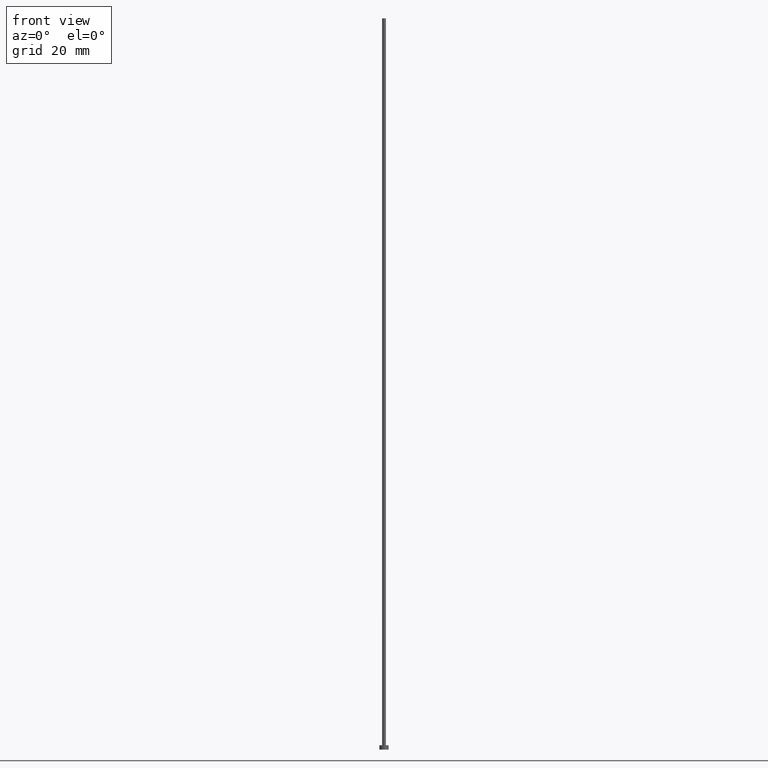
[diagram: clean part render]
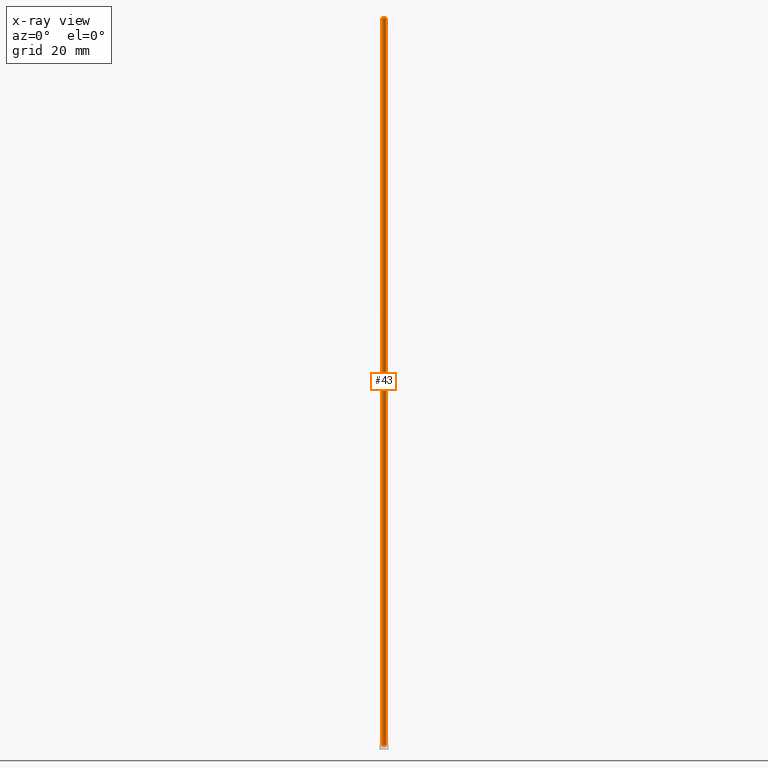
[diagram: x-ray — body ghosted, one internal face saturated and labeled with its STEP entity id]
A machine part, front view, then the same camera in x-ray: the body is ghosted and one INTERNAL B-rep face — a face not visible from any outside direction — is saturated and labeled: STEP entity #43.
In plain terms, the highlighted cylindrical surface (edge-blend (fillet) strip) has radius 0.5 mm, axis along (-0, -0, -1).
Its self-contained STEP definition (entity closure, byte-faithful):
#3 = AXIS2_PLACEMENT_3D ( 'NONE', #91, #254, #193 ) ;
#9 = CARTESIAN_POINT ( 'NONE',  ( -0.5000000000000000000, 0.000000000000000000, 1.199999999999999956 ) ) ;
#19 = VERTEX_POINT ( 'NONE', #30 ) ;
#21 = VERTEX_POINT ( 'NONE', #229 ) ;
#29 = EDGE_CURVE ( 'NONE', #80, #211, #153, .T. ) ;
#30 = CARTESIAN_POINT ( 'NONE',  ( 0.5000000000000000000, 6.123233995736766036E-17, 200.0000000000000000 ) ) ;
#32 = CARTESIAN_POINT ( 'NONE',  ( -0.5000000000000000000, 0.000000000000000000, 200.0000000000000000 ) ) ;
#43 = ADVANCED_FACE ( 'NONE', ( #93 ), #55, .T. ) ;
#52 = VECTOR ( 'NONE', #146, 1000.000000000000000 ) ;
#54 = ORIENTED_EDGE ( 'NONE', *, *, #29, .F. ) ;
#55 = CYLINDRICAL_SURFACE ( 'NONE', #3, 0.5000000000000000000 ) ;
#77 = ORIENTED_EDGE ( 'NONE', *, *, #244, .F. ) ;
#80 = VERTEX_POINT ( 'NONE', #32 ) ;
#85 = AXIS2_PLACEMENT_3D ( 'NONE', #110, #231, #194 ) ;
#90 = VECTOR ( 'NONE', #174, 1000.000000000000000 ) ;
#91 = CARTESIAN_POINT ( 'NONE',  ( 0.000000000000000000, 0.000000000000000000, 200.0000000000000000 ) ) ;
#92 = CARTESIAN_POINT ( 'NONE',  ( -0.5000000000000000000, 0.000000000000000000, 200.0000000000000000 ) ) ;
#93 = FACE_OUTER_BOUND ( 'NONE', #129, .T. ) ;
#105 = CIRCLE ( 'NONE', #167, 0.5000000000000000000 ) ;
#110 = CARTESIAN_POINT ( 'NONE',  ( 0.000000000000000000, 0.000000000000000000, 1.199999999999999956 ) ) ;
#122 = DIRECTION ( 'NONE',  ( 0.000000000000000000, 0.000000000000000000, 1.000000000000000000 ) ) ;
#127 = EDGE_CURVE ( 'NONE', #21, #211, #253, .T. ) ;
#129 = EDGE_LOOP ( 'NONE', ( #77, #138, #218, #54 ) ) ;
#138 = ORIENTED_EDGE ( 'NONE', *, *, #247, .T. ) ;
#146 = DIRECTION ( 'NONE',  ( -0.000000000000000000, -0.000000000000000000, -1.000000000000000000 ) ) ;
#153 = LINE ( 'NONE', #92, #90 ) ;
#167 = AXIS2_PLACEMENT_3D ( 'NONE', #207, #122, #248 ) ;
#170 = CARTESIAN_POINT ( 'NONE',  ( 0.5000000000000000000, 6.123233995736766036E-17, 200.0000000000000000 ) ) ;
#174 = DIRECTION ( 'NONE',  ( -0.000000000000000000, -0.000000000000000000, -1.000000000000000000 ) ) ;
#193 = DIRECTION ( 'NONE',  ( -1.000000000000000000, 0.000000000000000000, 0.000000000000000000 ) ) ;
#194 = DIRECTION ( 'NONE',  ( 1.000000000000000000, 0.000000000000000000, 0.000000000000000000 ) ) ;
#207 = CARTESIAN_POINT ( 'NONE',  ( 0.000000000000000000, 0.000000000000000000, 200.0000000000000000 ) ) ;
#211 = VERTEX_POINT ( 'NONE', #9 ) ;
#218 = ORIENTED_EDGE ( 'NONE', *, *, #127, .T. ) ;
#224 = LINE ( 'NONE', #170, #52 ) ;
#229 = CARTESIAN_POINT ( 'NONE',  ( 0.5000000000000000000, 6.123233995736766036E-17, 1.199999999999999956 ) ) ;
#231 = DIRECTION ( 'NONE',  ( 0.000000000000000000, 0.000000000000000000, 1.000000000000000000 ) ) ;
#244 = EDGE_CURVE ( 'NONE', #19, #80, #105, .T. ) ;
#247 = EDGE_CURVE ( 'NONE', #19, #21, #224, .T. ) ;
#248 = DIRECTION ( 'NONE',  ( 1.000000000000000000, 0.000000000000000000, 0.000000000000000000 ) ) ;
#253 = CIRCLE ( 'NONE', #85, 0.5000000000000000000 ) ;
#254 = DIRECTION ( 'NONE',  ( -0.000000000000000000, -0.000000000000000000, -1.000000000000000000 ) ) ;